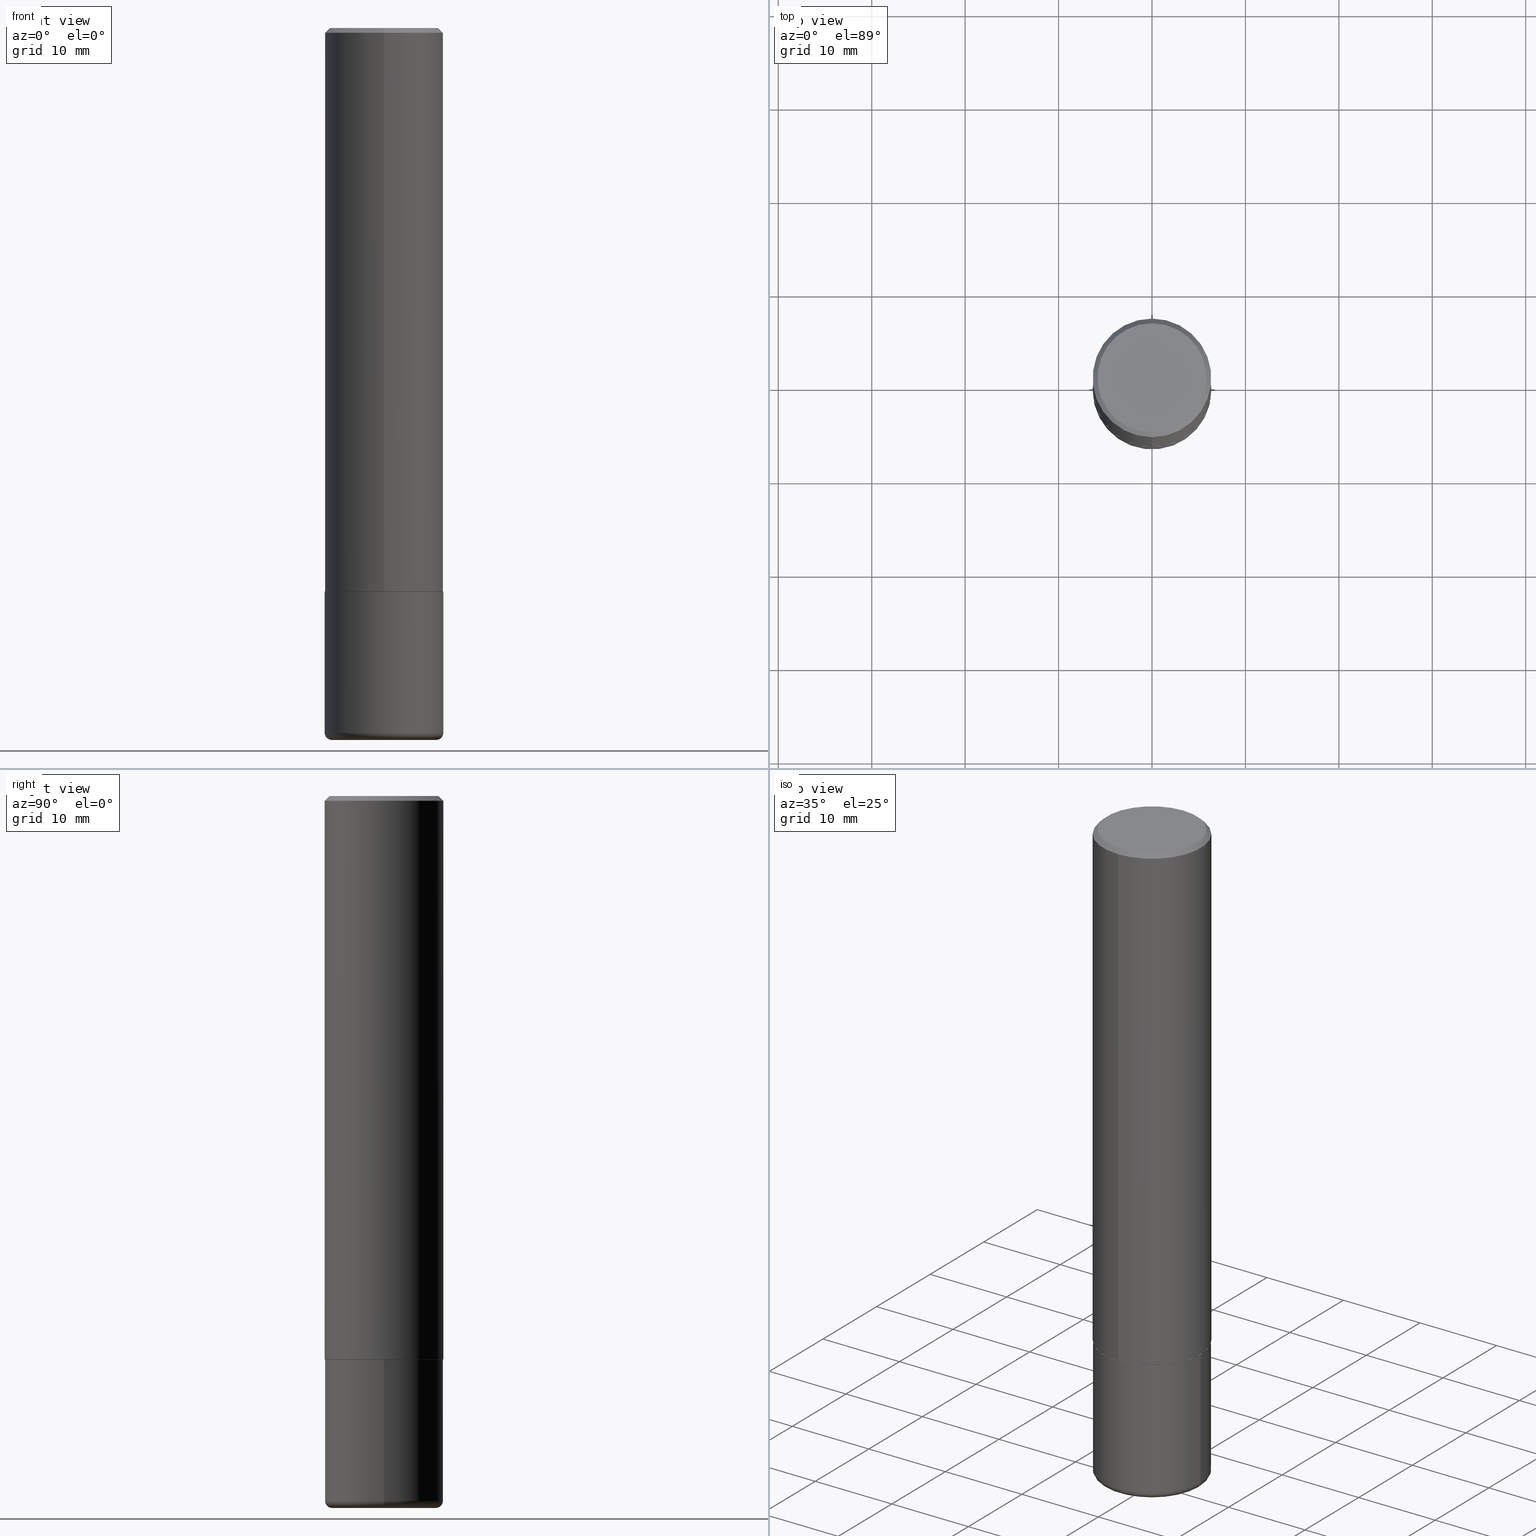
[diagram: canonical four-view strip — front | top / right | iso, engineering-drawing reading convention]
A machine part, canonical four-view strip (front | top / right | iso — engineering-drawing reading convention). The complete STEP part file that produces these views, byte-faithful:
ISO-10303-21;
HEADER;
FILE_DESCRIPTION (( 'STEP AP203' ),
    '1' );
FILE_NAME ('38579.STEP',
    '2024-03-03T06:13:17',
    ( '' ),
    ( '' ),
    'SwSTEP 2.0',
    'SolidWorks 2023',
    '' );
FILE_SCHEMA (( 'CONFIG_CONTROL_DESIGN' ));
ENDSEC;

DATA;
#1 = PLANE ( 'NONE',  #42 ) ;
#2 = ADVANCED_FACE ( 'NONE', ( #289 ), #16, .T. ) ;
#3 = CARTESIAN_POINT ( 'NONE',  ( 1.606081415867843039E-15, 0.2300000000000002320, -9.503610995550391843E-16 ) ) ;
#4 = CARTESIAN_POINT ( 'NONE',  ( 4.890248901431403027E-31, -6.983948950949810725E-17, -0.02000000000000009409 ) ) ;
#5 = LOCAL_TIME ( 1, 13, 17.00000000000000000, #193 ) ;
#6 = ORIENTED_EDGE ( 'NONE', *, *, #399, .F. ) ;
#7 = AXIS2_PLACEMENT_3D ( 'NONE', #167, #31, #171 ) ;
#8 = AXIS2_PLACEMENT_3D ( 'NONE', #75, #89, #13 ) ;
#9 = DIRECTION ( 'NONE',  ( -2.445124450715689953E-29, 3.491974475474889339E-15, 1.000000000000000000 ) ) ;
#10 = APPROVAL ( #225, 'UNSPECIFIED' ) ;
#11 = PERSON_AND_ORGANIZATION ( #302, #256 ) ;
#12 = EDGE_CURVE ( 'NONE', #91, #35, #133, .T. ) ;
#13 = DIRECTION ( 'NONE',  ( -6.982962677686265133E-15, -1.000000000000000000, 3.291383124896702687E-15 ) ) ;
#14 = DIRECTION ( 'NONE',  ( -6.982962677686265133E-15, -1.000000000000000000, 3.291383124896702687E-15 ) ) ;
#15 = APPLICATION_PROTOCOL_DEFINITION ( 'international standard', 'config_control_design', 1994, #173 ) ;
#16 = CYLINDRICAL_SURFACE ( 'NONE', #404, 0.2500000000000001110 ) ;
#17 = VECTOR ( 'NONE', #323, 39.37007874015748143 ) ;
#18 = DIRECTION ( 'NONE',  ( -6.982962677686266711E-15, -1.000000000000000000, 3.491974475474889733E-15 ) ) ;
#19 = FACE_OUTER_BOUND ( 'NONE', #32, .T. ) ;
#20 = ORIENTED_EDGE ( 'NONE', *, *, #297, .F. ) ;
#21 = DIRECTION ( 'NONE',  ( -2.445468806185136597E-29, 3.491481338843145583E-15, 1.000000000000000000 ) ) ;
#22 = FACE_OUTER_BOUND ( 'NONE', #204, .T. ) ;
#23 = ADVANCED_FACE ( 'NONE', ( #293 ), #356, .T. ) ;
#24 = CIRCLE ( 'NONE', #134, 0.2499999999999999722 ) ;
#25 = AXIS2_PLACEMENT_3D ( 'NONE', #351, #319, #137 ) ;
#26 = DIRECTION ( 'NONE',  ( -4.851104656540954020E-15, -0.7071067811865485719, -0.7071067811865464625 ) ) ;
#27 = CIRCLE ( 'NONE', #8, 0.2489999999999999991 ) ;
#28 = ORIENTED_EDGE ( 'NONE', *, *, #273, .T. ) ;
#29 = DIRECTION ( 'NONE',  ( -6.982962677686265133E-15, -1.000000000000000000, 3.291383124896702687E-15 ) ) ;
#30 = FACE_OUTER_BOUND ( 'NONE', #275, .T. ) ;
#31 = DIRECTION ( 'NONE',  ( -2.445468806185136597E-29, 3.491481338843145583E-15, 1.000000000000000000 ) ) ;
#32 = EDGE_LOOP ( 'NONE', ( #269, #158, #242, #330 ) ) ;
#33 = CARTESIAN_POINT ( 'NONE',  ( 5.807170570449764479E-29, -8.293439379252862969E-15, -2.375000000000000000 ) ) ;
#34 = FACE_OUTER_BOUND ( 'NONE', #142, .T. ) ;
#35 = VERTEX_POINT ( 'NONE', #415 ) ;
#36 = AXIS2_PLACEMENT_3D ( 'NONE', #65, #131, #261 ) ;
#37 = DIRECTION ( 'NONE',  ( -2.445124450715689953E-29, 3.491974475474889339E-15, 1.000000000000000000 ) ) ;
#38 = ORIENTED_EDGE ( 'NONE', *, *, #257, .T. ) ;
#39 = DIRECTION ( 'NONE',  ( 1.000000000000000000, -6.982962677686266711E-15, 0.000000000000000000 ) ) ;
#40 = ORIENTED_EDGE ( 'NONE', *, *, #407, .F. ) ;
#41 = CARTESIAN_POINT ( 'NONE',  ( 5.807988414689700538E-29, -8.292268179752471696E-15, -2.375000000000000000 ) ) ;
#42 = AXIS2_PLACEMENT_3D ( 'NONE', #143, #394, #241 ) ;
#43 = AXIS2_PLACEMENT_3D ( 'NONE', #78, #212, #184 ) ;
#44 = TOROIDAL_SURFACE ( 'NONE', #288, 0.2200000000000000011, 0.03000000000000024175 ) ;
#45 = CC_DESIGN_PERSON_AND_ORGANIZATION_ASSIGNMENT ( #344, #64, ( #378 ) ) ;
#46 = DIRECTION ( 'NONE',  ( -2.445124450715689953E-29, 3.491974475474889339E-15, 1.000000000000000000 ) ) ;
#47 = APPROVAL_ROLE ( '' ) ;
#48 = CARTESIAN_POINT ( 'NONE',  ( 0.000000000000000000, 0.000000000000000000, 0.000000000000000000 ) ) ;
#49 = ORIENTED_EDGE ( 'NONE', *, *, #296, .T. ) ;
#50 = EDGE_CURVE ( 'NONE', #91, #228, #295, .T. ) ;
#51 = PERSON_AND_ORGANIZATION ( #302, #256 ) ;
#52 = APPROVAL ( #286, 'UNSPECIFIED' ) ;
#53 = AXIS2_PLACEMENT_3D ( 'NONE', #111, #9, #401 ) ;
#54 = ADVANCED_FACE ( 'NONE', ( #30 ), #417, .T. ) ;
#55 = CARTESIAN_POINT ( 'NONE',  ( 0.000000000000000000, 0.000000000000000000, 0.000000000000000000 ) ) ;
#56 = VERTEX_POINT ( 'NONE', #85 ) ;
#57 = EDGE_CURVE ( 'NONE', #35, #126, #250, .T. ) ;
#58 = COORDINATED_UNIVERSAL_TIME_OFFSET ( 5, 0, .BEHIND. ) ;
#59 = DIRECTION ( 'NONE',  ( -1.000000000000000000, 7.105427357600994759E-15, 0.000000000000000000 ) ) ;
#60 = PERSON_AND_ORGANIZATION ( #302, #256 ) ;
#61 = DATE_TIME_ROLE ( 'classification_date' ) ;
#62 = DIRECTION ( 'NONE',  ( 6.982962677686265922E-15, 1.000000000000000000, -3.500180241882337655E-15 ) ) ;
#63 = EDGE_CURVE ( 'NONE', #79, #337, #153, .T. ) ;
#64 = PERSON_AND_ORGANIZATION_ROLE ( 'creator' ) ;
#65 = CARTESIAN_POINT ( 'NONE',  ( 2.133753896500054563E-29, -1.792493854470469860E-14, -3.000000000000000888 ) ) ;
#66 = CARTESIAN_POINT ( 'NONE',  ( -0.2500000000000000000, -7.554627038658056086E-15, -2.375000000000000000 ) ) ;
#67 = ORIENTED_EDGE ( 'NONE', *, *, #50, .F. ) ;
#68 = CC_DESIGN_SECURITY_CLASSIFICATION ( #107, ( #378 ) ) ;
#69 = LINE ( 'NONE', #263, #17 ) ;
#70 = CIRCLE ( 'NONE', #272, 0.2200000000000000011 ) ;
#71 = DIRECTION ( 'NONE',  ( -2.445468806185136877E-29, 3.491481338843145188E-15, 1.000000000000000000 ) ) ;
#72 = EDGE_LOOP ( 'NONE', ( #348, #115, #247, #106 ) ) ;
#73 = ADVANCED_FACE ( 'NONE', ( #103 ), #235, .T. ) ;
#74 = DIRECTION ( 'NONE',  ( -2.445124450715689953E-29, 3.491974475474889339E-15, 1.000000000000000000 ) ) ;
#75 = CARTESIAN_POINT ( 'NONE',  ( 5.807170570449764479E-29, -8.293439379252862969E-15, -2.375000000000000000 ) ) ;
#76 = LINE ( 'NONE', #207, #218 ) ;
#77 = ORIENTED_EDGE ( 'NONE', *, *, #273, .F. ) ;
#78 = CARTESIAN_POINT ( 'NONE',  ( 5.804725445999048016E-29, -8.289947404777387606E-15, -2.374000000000000110 ) ) ;
#79 = VERTEX_POINT ( 'NONE', #388 ) ;
#80 = DIRECTION ( 'NONE',  ( 1.000000000000000000, -6.982962677686270655E-15, 0.000000000000000000 ) ) ;
#81 = ORIENTED_EDGE ( 'NONE', *, *, #57, .F. ) ;
#82 = DIRECTION ( 'NONE',  ( -2.445468806185136877E-29, 3.491481338843145188E-15, 1.000000000000000000 ) ) ;
#83 = PLANE ( 'NONE',  #258 ) ;
#84 = EDGE_CURVE ( 'NONE', #362, #56, #69, .T. ) ;
#85 = CARTESIAN_POINT ( 'NONE',  ( -1.715124499442881905E-15, -0.2500000000000000555, -0.01999999999999921979 ) ) ;
#86 = CARTESIAN_POINT ( 'NONE',  ( 7.263042354369856275E-29, -1.036969957636414298E-14, -2.970000000000000195 ) ) ;
#87 = PERSON_AND_ORGANIZATION ( #302, #256 ) ;
#88 = VECTOR ( 'NONE', #71, 39.37007874015748143 ) ;
#89 = DIRECTION ( 'NONE',  ( -2.445124450715689953E-29, 3.491974475474889339E-15, 1.000000000000000000 ) ) ;
#90 = DIRECTION ( 'NONE',  ( -2.445124450715689953E-29, 3.491974475474889339E-15, 1.000000000000000000 ) ) ;
#91 = VERTEX_POINT ( 'NONE', #410 ) ;
#92 = MANIFOLD_SOLID_BREP ( 'Body-Move/Copy2[2]', #333 ) ;
#93 = CALENDAR_DATE ( 2024, 3, 3 ) ;
#94 = ADVANCED_FACE ( 'NONE', ( #22 ), #266, .T. ) ;
#95 = LOCAL_TIME ( 1, 13, 17.00000000000000000, #58 ) ;
#96 = PERSON_AND_ORGANIZATION ( #302, #256 ) ;
#97 = DATE_AND_TIME ( #136, #5 ) ;
#98 = DIRECTION ( 'NONE',  ( 2.445124450715689953E-29, -3.491974475474889339E-15, -1.000000000000000000 ) ) ;
#99 = ADVANCED_FACE ( 'NONE', ( #206 ), #416, .F. ) ;
#100 = VECTOR ( 'NONE', #26, 39.37007874015748143 ) ;
#101 = DIRECTION ( 'NONE',  ( 1.000000000000000000, -6.982962677686266711E-15, 4.876176775795935793E-29 ) ) ;
#102 = CARTESIAN_POINT ( 'NONE',  ( -1.738757706743822090E-15, -0.2490000000000082980, -2.374999999999999556 ) ) ;
#103 = FACE_OUTER_BOUND ( 'NONE', #317, .T. ) ;
#104 = EDGE_CURVE ( 'NONE', #335, #56, #105, .T. ) ;
#105 = LINE ( 'NONE', #109, #100 ) ;
#106 = ORIENTED_EDGE ( 'NONE', *, *, #244, .F. ) ;
#107 = SECURITY_CLASSIFICATION ( '', '', #165 ) ;
#108 = AXIS2_PLACEMENT_3D ( 'NONE', #180, #147, #307 ) ;
#109 = CARTESIAN_POINT ( 'NONE',  ( -1.715124499442881905E-15, -0.2500000000000000555, -0.01999999999999921979 ) ) ;
#110 = CIRCLE ( 'NONE', #385, 0.2500000000000000000 ) ;
#111 = CARTESIAN_POINT ( 'NONE',  ( 7.198787242831196614E-45, -1.028085965071548040E-30, -2.944139403916273006E-16 ) ) ;
#112 = PRODUCT_DEFINITION ( 'UNKNOWN', '', #378, #392 ) ;
#113 = PRODUCT ( '38579', '38579', '', ( #279 ) ) ;
#114 = DIRECTION ( 'NONE',  ( -2.445468806185136597E-29, 3.491481338843145583E-15, 1.000000000000000000 ) ) ;
#115 = ORIENTED_EDGE ( 'NONE', *, *, #399, .T. ) ;
#116 = DIRECTION ( 'NONE',  ( -4.937700262165053702E-15, -0.7071067811866175168, 0.7071067811864775177 ) ) ;
#117 = AXIS2_PLACEMENT_3D ( 'NONE', #176, #246, #80 ) ;
#118 = CARTESIAN_POINT ( 'NONE',  ( -0.2500000000000000000, 1.776356839400250465E-15, -1.229733772563726445E-29 ) ) ;
#119 = FACE_OUTER_BOUND ( 'NONE', #231, .T. ) ;
#120 = EDGE_CURVE ( 'NONE', #233, #196, #383, .T. ) ;
#121 = CARTESIAN_POINT ( 'NONE',  ( -0.2200000000000000011, -8.752296367410555115E-15, -3.000000000000000888 ) ) ;
#122 = DATE_AND_TIME ( #253, #95 ) ;
#123 = DATE_AND_TIME ( #93, #294 ) ;
#124 = CARTESIAN_POINT ( 'NONE',  ( 1.675911042644704760E-15, 0.2300000000000002320, -1.097568069750852835E-15 ) ) ;
#125 = LENGTH_MEASURE_WITH_UNIT ( LENGTH_MEASURE( 0.02539999999999999897 ), #347 );
#126 = VERTEX_POINT ( 'NONE', #66 ) ;
#127 = CC_DESIGN_APPROVAL ( #276, ( #378 ) ) ;
#128 =( GEOMETRIC_REPRESENTATION_CONTEXT ( 3 ) GLOBAL_UNCERTAINTY_ASSIGNED_CONTEXT ( ( #132 ) ) GLOBAL_UNIT_ASSIGNED_CONTEXT ( ( #255, #222, #402 ) ) REPRESENTATION_CONTEXT ( 'NONE', 'WORKASPACE' ) );
#129 = CC_DESIGN_DATE_AND_TIME_ASSIGNMENT ( #162, #61, ( #107 ) ) ;
#130 = ADVANCED_FACE ( 'NONE', ( #19 ), #201, .T. ) ;
#131 = DIRECTION ( 'NONE',  ( 2.438088387897960049E-29, -3.491481338843145188E-15, -1.000000000000000000 ) ) ;
#132 = UNCERTAINTY_MEASURE_WITH_UNIT (LENGTH_MEASURE( 1.000000000000000082E-05 ), #255, 'distance_accuracy_value', 'NONE');
#133 = CIRCLE ( 'NONE', #148, 0.2500000000000000000 ) ;
#134 = AXIS2_PLACEMENT_3D ( 'NONE', #245, #150, #217 ) ;
#135 = PERSON_AND_ORGANIZATION ( #302, #256 ) ;
#136 = CALENDAR_DATE ( 2024, 3, 3 ) ;
#137 = DIRECTION ( 'NONE',  ( -6.982962677686265922E-15, -1.000000000000000000, 3.491974475474889339E-15 ) ) ;
#138 = ORIENTED_EDGE ( 'NONE', *, *, #179, .T. ) ;
#139 = ORIENTED_EDGE ( 'NONE', *, *, #84, .F. ) ;
#140 = VECTOR ( 'NONE', #354, 39.37007874015748143 ) ;
#141 = DIRECTION ( 'NONE',  ( -2.445468806185136597E-29, 3.491481338843145583E-15, 1.000000000000000000 ) ) ;
#142 = EDGE_LOOP ( 'NONE', ( #343, #151, #28, #226 ) ) ;
#143 = CARTESIAN_POINT ( 'NONE',  ( 5.807988414689700538E-29, -8.292268179752471696E-15, -2.375000000000000000 ) ) ;
#144 = ORIENTED_EDGE ( 'NONE', *, *, #120, .T. ) ;
#145 = CARTESIAN_POINT ( 'NONE',  ( 0.000000000000000000, 0.000000000000000000, 0.000000000000000000 ) ) ;
#146 = CC_DESIGN_APPROVAL ( #10, ( #112 ) ) ;
#147 = DIRECTION ( 'NONE',  ( -6.982962677686266711E-15, -1.000000000000000000, 3.491481338843145583E-15 ) ) ;
#148 = AXIS2_PLACEMENT_3D ( 'NONE', #345, #312, #232 ) ;
#149 = CONICAL_SURFACE ( 'NONE', #202, 0.2499999999999999722, 0.7853981633974463916 ) ;
#150 = DIRECTION ( 'NONE',  ( -2.445124450715689953E-29, 3.491974475474889339E-15, 1.000000000000000000 ) ) ;
#151 = ORIENTED_EDGE ( 'NONE', *, *, #229, .F. ) ;
#152 = DIRECTION ( 'NONE',  ( 1.000000000000000000, 0.000000000000000000, 0.000000000000000000 ) ) ;
#153 = CIRCLE ( 'NONE', #262, 0.2200000000000000011 ) ;
#154 = ADVANCED_FACE ( 'NONE', ( #329 ), #301, .T. ) ;
#155 = DIRECTION ( 'NONE',  ( 0.000000000000000000, 0.000000000000000000, 1.000000000000000000 ) ) ;
#156 = APPLICATION_PROTOCOL_DEFINITION ( 'international standard', 'config_control_design', 1994, #393 ) ;
#157 = PERSON_AND_ORGANIZATION ( #302, #256 ) ;
#158 = ORIENTED_EDGE ( 'NONE', *, *, #371, .T. ) ;
#159 = AXIS2_PLACEMENT_3D ( 'NONE', #227, #210, #59 ) ;
#160 = EDGE_CURVE ( 'NONE', #362, #233, #412, .T. ) ;
#161 = ADVANCED_FACE ( 'NONE', ( #197 ), #291, .T. ) ;
#162 = DATE_AND_TIME ( #357, #236 ) ;
#163 = DIRECTION ( 'NONE',  ( -2.445124450715689953E-29, 3.491974475474889339E-15, 1.000000000000000000 ) ) ;
#164 = ORIENTED_EDGE ( 'NONE', *, *, #160, .T. ) ;
#165 = SECURITY_CLASSIFICATION_LEVEL ( 'unclassified' ) ;
#166 = DIRECTION ( 'NONE',  ( 1.000000000000000000, -6.982962677686270655E-15, 0.000000000000000000 ) ) ;
#167 = CARTESIAN_POINT ( 'NONE',  ( 7.263042354369856275E-29, -1.036969957636414298E-14, -2.970000000000000195 ) ) ;
#168 = ORIENTED_EDGE ( 'NONE', *, *, #179, .F. ) ;
#169 = PRODUCT_RELATED_PRODUCT_CATEGORY ( 'detail', '', ( #113 ) ) ;
#170 = CLOSED_SHELL ( 'NONE', ( #23, #130, #349, #54, #220, #161 ) ) ;
#171 = DIRECTION ( 'NONE',  ( 1.000000000000000000, -6.982962677686262766E-15, 4.883557194083111780E-29 ) ) ;
#172 = DIRECTION ( 'NONE',  ( 1.000000000000000000, -6.982962677686266711E-15, 4.876176775795935793E-29 ) ) ;
#173 = APPLICATION_CONTEXT ( 'configuration controlled 3d designs of mechanical parts and assemblies' ) ;
#174 = EDGE_CURVE ( 'NONE', #233, #362, #309, .T. ) ;
#175 = CARTESIAN_POINT ( 'NONE',  ( 4.890248901431403027E-31, -6.983948950949810725E-17, -0.02000000000000009409 ) ) ;
#176 = CARTESIAN_POINT ( 'NONE',  ( 7.263042354369856275E-29, -1.036969957636414298E-14, -2.970000000000000195 ) ) ;
#177 = ORIENTED_EDGE ( 'NONE', *, *, #296, .F. ) ;
#178 = EDGE_LOOP ( 'NONE', ( #268, #38 ) ) ;
#179 = EDGE_CURVE ( 'NONE', #56, #196, #281, .T. ) ;
#180 = CARTESIAN_POINT ( 'NONE',  ( 0.2200000000000000011, -1.190595136545512292E-14, -2.970000000000000195 ) ) ;
#181 = ORIENTED_EDGE ( 'NONE', *, *, #174, .T. ) ;
#182 = CARTESIAN_POINT ( 'NONE',  ( 7.336406418555412032E-29, -1.047444401652943951E-14, -3.000000000000000888 ) ) ;
#183 = EDGE_CURVE ( 'NONE', #79, #91, #287, .T. ) ;
#184 = DIRECTION ( 'NONE',  ( -6.982962677686265922E-15, -1.000000000000000000, 3.278217592397112312E-15 ) ) ;
#185 = AXIS2_PLACEMENT_3D ( 'NONE', #4, #37, #341 ) ;
#186 = APPROVAL_PERSON_ORGANIZATION ( #96, #10, #249 ) ;
#187 = DIRECTION ( 'NONE',  ( -2.445468806185136597E-29, 3.491481338843145583E-15, 1.000000000000000000 ) ) ;
#188 = COORDINATED_UNIVERSAL_TIME_OFFSET ( 5, 0, .BEHIND. ) ;
#189 = AXIS2_PLACEMENT_3D ( 'NONE', #237, #298, #29 ) ;
#190 = APPROVAL_DATE_TIME ( #122, #10 ) ;
#191 = ADVANCED_FACE ( 'NONE', ( #418 ), #336, .T. ) ;
#192 = AXIS2_PLACEMENT_3D ( 'NONE', #48, #318, #101 ) ;
#193 = COORDINATED_UNIVERSAL_TIME_OFFSET ( 5, 0, .BEHIND. ) ;
#194 = COORDINATED_UNIVERSAL_TIME_OFFSET ( 5, 0, .BEHIND. ) ;
#195 = DIRECTION ( 'NONE',  ( 1.000000000000000000, -6.982962677686270655E-15, 0.000000000000000000 ) ) ;
#196 = VERTEX_POINT ( 'NONE', #398 ) ;
#197 = FACE_OUTER_BOUND ( 'NONE', #209, .T. ) ;
#198 = ORIENTED_EDGE ( 'NONE', *, *, #244, .T. ) ;
#199 = ORIENTED_EDGE ( 'NONE', *, *, #63, .F. ) ;
#200 = APPROVAL_PERSON_ORGANIZATION ( #87, #276, #47 ) ;
#201 = TOROIDAL_SURFACE ( 'NONE', #7, 0.2200000000000000011, 0.03000000000000024175 ) ;
#202 = AXIS2_PLACEMENT_3D ( 'NONE', #175, #390, #267 ) ;
#203 = ORIENTED_EDGE ( 'NONE', *, *, #50, .T. ) ;
#204 = EDGE_LOOP ( 'NONE', ( #350, #265, #211, #177 ) ) ;
#205 = CC_DESIGN_PERSON_AND_ORGANIZATION_ASSIGNMENT ( #157, #382, ( #107 ) ) ;
#206 = FACE_OUTER_BOUND ( 'NONE', #352, .T. ) ;
#207 = CARTESIAN_POINT ( 'NONE',  ( -1.738757706743822090E-15, -0.2490000000000082980, -2.374999999999999556 ) ) ;
#208 = DIRECTION ( 'NONE',  ( 1.000000000000000000, -6.982962677686262766E-15, 4.883557194083111780E-29 ) ) ;
#209 = EDGE_LOOP ( 'NONE', ( #199, #6 ) ) ;
#210 = DIRECTION ( 'NONE',  ( 7.105427357601001859E-15, 1.000000000000000000, -3.491481338843145583E-15 ) ) ;
#211 = ORIENTED_EDGE ( 'NONE', *, *, #160, .F. ) ;
#212 = DIRECTION ( 'NONE',  ( -2.445124450715689953E-29, 3.491974475474889339E-15, 1.000000000000000000 ) ) ;
#213 = ORIENTED_EDGE ( 'NONE', *, *, #12, .T. ) ;
#214 = FACE_OUTER_BOUND ( 'NONE', #72, .T. ) ;
#215 = EDGE_LOOP ( 'NONE', ( #213, #308, #321, #67 ) ) ;
#216 = CIRCLE ( 'NONE', #53, 0.2300000000000002320 ) ;
#217 = DIRECTION ( 'NONE',  ( -6.982962677686265922E-15, -1.000000000000000000, 3.500180241882337655E-15 ) ) ;
#218 = VECTOR ( 'NONE', #116, 39.37007874015748143 ) ;
#219 = APPROVAL_DATE_TIME ( #123, #276 ) ;
#220 = ADVANCED_FACE ( 'NONE', ( #214 ), #44, .T. ) ;
#221 = DIRECTION ( 'NONE',  ( 5.024295867788576727E-15, 0.7071067811866224018, 0.7071067811864726327 ) ) ;
#222 =( NAMED_UNIT ( * ) PLANE_ANGLE_UNIT ( ) SI_UNIT ( $, .RADIAN. ) );
#223 = CC_DESIGN_PERSON_AND_ORGANIZATION_ASSIGNMENT ( #135, #327, ( #378 ) ) ;
#224 = AXIS2_PLACEMENT_3D ( 'NONE', #41, #338, #39 ) ;
#225 = APPROVAL_STATUS ( 'not_yet_approved' ) ;
#226 = ORIENTED_EDGE ( 'NONE', *, *, #297, .T. ) ;
#227 = CARTESIAN_POINT ( 'NONE',  ( -0.2200000000000000011, -8.806505557691921187E-15, -2.970000000000000195 ) ) ;
#228 = VERTEX_POINT ( 'NONE', #334 ) ;
#229 = EDGE_CURVE ( 'NONE', #355, #335, #216, .T. ) ;
#230 = CARTESIAN_POINT ( 'NONE',  ( 1.776356839400251254E-15, 0.2500000000000001110, -8.729936188687228278E-16 ) ) ;
#231 = EDGE_LOOP ( 'NONE', ( #377, #304 ) ) ;
#232 = DIRECTION ( 'NONE',  ( 1.000000000000000000, -6.982962677686270655E-15, 0.000000000000000000 ) ) ;
#233 = VERTEX_POINT ( 'NONE', #248 ) ;
#234 = CIRCLE ( 'NONE', #224, 0.2500000000000000000 ) ;
#235 = CONICAL_SURFACE ( 'NONE', #368, 0.2489999999999999991, 0.7853981633975507526 ) ;
#236 = LOCAL_TIME ( 1, 13, 17.00000000000000000, #194 ) ;
#237 = CARTESIAN_POINT ( 'NONE',  ( 5.807170570449764479E-29, -8.293439379252862969E-15, -2.375000000000000000 ) ) ;
#238 = MANIFOLD_SOLID_BREP ( 'Body-Move/Copy2[1]', #170 ) ;
#239 = DIRECTION ( 'NONE',  ( -6.982962677686266711E-15, -1.000000000000000000, 3.491974475474889733E-15 ) ) ;
#240 = ORIENTED_EDGE ( 'NONE', *, *, #257, .F. ) ;
#241 = DIRECTION ( 'NONE',  ( -1.000000000000000000, 6.982962677686265922E-15, -4.876176775795935793E-29 ) ) ;
#242 = ORIENTED_EDGE ( 'NONE', *, *, #12, .F. ) ;
#243 = AXIS2_PLACEMENT_3D ( 'NONE', #292, #163, #413 ) ;
#244 = EDGE_CURVE ( 'NONE', #35, #91, #285, .T. ) ;
#245 = CARTESIAN_POINT ( 'NONE',  ( 4.890248901431403027E-31, -6.983948950949810725E-17, -0.02000000000000009409 ) ) ;
#246 = DIRECTION ( 'NONE',  ( -2.445468806185136597E-29, 3.491481338843145583E-15, 1.000000000000000000 ) ) ;
#247 = ORIENTED_EDGE ( 'NONE', *, *, #183, .T. ) ;
#248 = CARTESIAN_POINT ( 'NONE',  ( 1.776356839400280836E-15, 0.2499999999999919786, -2.374000000000000998 ) ) ;
#249 = APPROVAL_ROLE ( '' ) ;
#250 = LINE ( 'NONE', #118, #379 ) ;
#251 = ADVANCED_FACE ( 'NONE', ( #34 ), #149, .T. ) ;
#252 = CARTESIAN_POINT ( 'NONE',  ( -1.745740669421510471E-15, -0.2500000000000085487, -2.373999999999999222 ) ) ;
#253 = CALENDAR_DATE ( 2024, 3, 3 ) ;
#254 = EDGE_CURVE ( 'NONE', #335, #355, #387, .T. ) ;
#255 =( CONVERSION_BASED_UNIT ( 'INCH', #125 ) LENGTH_UNIT ( ) NAMED_UNIT ( #311 ) );
#256 = ORGANIZATION ( 'UNSPECIFIED', 'UNSPECIFIED', '' ) ;
#257 = EDGE_CURVE ( 'NONE', #126, #228, #234, .T. ) ;
#258 = AXIS2_PLACEMENT_3D ( 'NONE', #3, #271, #331 ) ;
#259 = CARTESIAN_POINT ( 'NONE',  ( 0.000000000000000000, 0.000000000000000000, 0.000000000000000000 ) ) ;
#260 = CARTESIAN_POINT ( 'NONE',  ( 4.890248901431403027E-31, -6.983948950949810725E-17, -0.02000000000000009409 ) ) ;
#261 = DIRECTION ( 'NONE',  ( -1.000000000000000000, 6.982962677686265922E-15, -4.876176775795935793E-29 ) ) ;
#262 = AXIS2_PLACEMENT_3D ( 'NONE', #182, #187, #195 ) ;
#263 = CARTESIAN_POINT ( 'NONE',  ( -1.745740669421567467E-15, -0.2500000000000001110, 8.729936188687228278E-16 ) ) ;
#264 = CARTESIAN_POINT ( 'NONE',  ( 5.807170570449764479E-29, -8.293439379252862969E-15, -2.375000000000000000 ) ) ;
#265 = ORIENTED_EDGE ( 'NONE', *, *, #353, .T. ) ;
#266 = CONICAL_SURFACE ( 'NONE', #189, 0.2489999999999999991, 0.7853981633975507526 ) ;
#267 = DIRECTION ( 'NONE',  ( 6.982962677686265922E-15, 1.000000000000000000, -3.500180241882337655E-15 ) ) ;
#268 = ORIENTED_EDGE ( 'NONE', *, *, #280, .T. ) ;
#269 = ORIENTED_EDGE ( 'NONE', *, *, #63, .T. ) ;
#270 = DIRECTION ( 'NONE',  ( -2.445124450715689953E-29, 3.491974475474889339E-15, 1.000000000000000000 ) ) ;
#271 = DIRECTION ( 'NONE',  ( 2.445124450715689673E-29, -3.491974475474889339E-15, -1.000000000000000000 ) ) ;
#272 = AXIS2_PLACEMENT_3D ( 'NONE', #320, #21, #166 ) ;
#273 = EDGE_CURVE ( 'NONE', #355, #196, #364, .T. ) ;
#274 = CARTESIAN_POINT ( 'NONE',  ( 7.198787242831196614E-45, -1.028085965071548040E-30, -2.944139403916273006E-16 ) ) ;
#275 = EDGE_LOOP ( 'NONE', ( #81, #198, #203, #240 ) ) ;
#276 = APPROVAL ( #403, 'UNSPECIFIED' ) ;
#277 = DIRECTION ( 'NONE',  ( 1.000000000000000000, -6.982962677686266711E-15, 0.000000000000000000 ) ) ;
#278 = COORDINATED_UNIVERSAL_TIME_OFFSET ( 5, 0, .BEHIND. ) ;
#279 = MECHANICAL_CONTEXT ( 'NONE', #393, 'mechanical' ) ;
#280 = EDGE_CURVE ( 'NONE', #228, #126, #110, .T. ) ;
#281 = CIRCLE ( 'NONE', #185, 0.2499999999999999722 ) ;
#282 = CALENDAR_DATE ( 2024, 3, 3 ) ;
#283 = ADVANCED_FACE ( 'NONE', ( #119 ), #83, .F. ) ;
#284 = PERSON_AND_ORGANIZATION_ROLE ( 'design_owner' ) ;
#285 = CIRCLE ( 'NONE', #117, 0.2500000000000000000 ) ;
#286 = APPROVAL_STATUS ( 'not_yet_approved' ) ;
#287 = CIRCLE ( 'NONE', #108, 0.03000000000000025910 ) ;
#288 = AXIS2_PLACEMENT_3D ( 'NONE', #86, #141, #208 ) ;
#289 = FACE_OUTER_BOUND ( 'NONE', #332, .T. ) ;
#290 = CARTESIAN_POINT ( 'NONE',  ( 1.772804125721508731E-15, 0.2489999999999917002, -2.375000000000000888 ) ) ;
#291 = PLANE ( 'NONE',  #36 ) ;
#292 = CARTESIAN_POINT ( 'NONE',  ( 5.804725445999048016E-29, -8.289947404777387606E-15, -2.374000000000000110 ) ) ;
#293 = FACE_OUTER_BOUND ( 'NONE', #215, .T. ) ;
#294 = LOCAL_TIME ( 1, 13, 17.00000000000000000, #188 ) ;
#295 = LINE ( 'NONE', #359, #88 ) ;
#296 = EDGE_CURVE ( 'NONE', #395, #362, #76, .T. ) ;
#297 = EDGE_CURVE ( 'NONE', #196, #56, #24, .T. ) ;
#298 = DIRECTION ( 'NONE',  ( -2.445124450715689953E-29, 3.491974475474889339E-15, 1.000000000000000000 ) ) ;
#299 = DIRECTION ( 'NONE',  ( -6.982962677686266711E-15, -1.000000000000000000, 3.491974475474889733E-15 ) ) ;
#300 = EDGE_LOOP ( 'NONE', ( #164, #144, #168, #139 ) ) ;
#301 = CONICAL_SURFACE ( 'NONE', #360, 0.2499999999999999722, 0.7853981633974463916 ) ;
#302 = PERSON ( 'UNSPECIFIED', 'UNSPECIFIED', 'UNSPECIFIED', ('UNSPECIFIED'), ('UNSPECIFIED'), ('UNSPECIFIED') ) ;
#303 = CARTESIAN_POINT ( 'NONE',  ( 5.807988414689700538E-29, -8.292268179752471696E-15, -2.375000000000000000 ) ) ;
#304 = ORIENTED_EDGE ( 'NONE', *, *, #254, .T. ) ;
#305 = CC_DESIGN_PERSON_AND_ORGANIZATION_ASSIGNMENT ( #11, #375, ( #112 ) ) ;
#306 = ORIENTED_EDGE ( 'NONE', *, *, #407, .T. ) ;
#307 = DIRECTION ( 'NONE',  ( 1.000000000000000000, -6.982962677686273021E-15, 0.000000000000000000 ) ) ;
#308 = ORIENTED_EDGE ( 'NONE', *, *, #57, .T. ) ;
#309 = CIRCLE ( 'NONE', #43, 0.2500000000000002776 ) ;
#310 = AXIS2_PLACEMENT_3D ( 'NONE', #33, #90, #14 ) ;
#311 = DIMENSIONAL_EXPONENTS ( 1.000000000000000000, 0.000000000000000000, 0.000000000000000000, 0.000000000000000000, 0.000000000000000000, 0.000000000000000000, 0.000000000000000000 ) ;
#312 = DIRECTION ( 'NONE',  ( -2.445468806185136597E-29, 3.491481338843145583E-15, 1.000000000000000000 ) ) ;
#313 = CC_DESIGN_APPROVAL ( #52, ( #107 ) ) ;
#314 = CC_DESIGN_PERSON_AND_ORGANIZATION_ASSIGNMENT ( #51, #284, ( #113 ) ) ;
#315 = ORIENTED_EDGE ( 'NONE', *, *, #174, .F. ) ;
#316 = DIRECTION ( 'NONE',  ( -2.445124450715689953E-29, 3.491974475474889339E-15, 1.000000000000000000 ) ) ;
#317 = EDGE_LOOP ( 'NONE', ( #367, #306, #49, #315 ) ) ;
#318 = DIRECTION ( 'NONE',  ( -2.445468806185136597E-29, 3.491481338843145583E-15, 1.000000000000000000 ) ) ;
#319 = DIRECTION ( 'NONE',  ( -2.445124450715689673E-29, 3.491974475474889339E-15, 1.000000000000000000 ) ) ;
#320 = CARTESIAN_POINT ( 'NONE',  ( 7.336406418555412032E-29, -1.047444401652943951E-14, -3.000000000000000888 ) ) ;
#321 = ORIENTED_EDGE ( 'NONE', *, *, #280, .F. ) ;
#322 = VECTOR ( 'NONE', #400, 39.37007874015748143 ) ;
#323 = DIRECTION ( 'NONE',  ( -2.445124450715689673E-29, 3.491974475474889339E-15, 1.000000000000000000 ) ) ;
#324 = DIRECTION ( 'NONE',  ( -2.445468806185136597E-29, 3.491481338843145583E-15, 1.000000000000000000 ) ) ;
#325 = AXIS2_PLACEMENT_3D ( 'NONE', #414, #324, #172 ) ;
#326 = EDGE_LOOP ( 'NONE', ( #381, #391, #138, #77 ) ) ;
#327 = PERSON_AND_ORGANIZATION_ROLE ( 'design_supplier' ) ;
#328 = DIRECTION ( 'NONE',  ( -6.982962677686265133E-15, -1.000000000000000000, 3.291383124896702687E-15 ) ) ;
#329 = FACE_OUTER_BOUND ( 'NONE', #326, .T. ) ;
#330 = ORIENTED_EDGE ( 'NONE', *, *, #183, .F. ) ;
#331 = DIRECTION ( 'NONE',  ( 6.982962677686265922E-15, 1.000000000000000000, -3.491974475474889339E-15 ) ) ;
#332 = EDGE_LOOP ( 'NONE', ( #365, #181, #396, #20 ) ) ;
#333 = CLOSED_SHELL ( 'NONE', ( #94, #191, #154, #251, #2, #73, #99, #283 ) ) ;
#334 = CARTESIAN_POINT ( 'NONE',  ( 0.2500000000000000000, -1.003800884917403837E-14, -2.375000000000000000 ) ) ;
#335 = VERTEX_POINT ( 'NONE', #370 ) ;
#336 = CYLINDRICAL_SURFACE ( 'NONE', #361, 0.2500000000000001110 ) ;
#337 = VERTEX_POINT ( 'NONE', #121 ) ;
#338 = DIRECTION ( 'NONE',  ( -2.445468806185136597E-29, 3.491481338843145583E-15, 1.000000000000000000 ) ) ;
#339 = APPROVAL_PERSON_ORGANIZATION ( #60, #52, #409 ) ;
#340 = VECTOR ( 'NONE', #221, 39.37007874015748143 ) ;
#341 = DIRECTION ( 'NONE',  ( -6.982962677686265922E-15, -1.000000000000000000, 3.500180241882337655E-15 ) ) ;
#342 = DATE_TIME_ROLE ( 'creation_date' ) ;
#343 = ORIENTED_EDGE ( 'NONE', *, *, #104, .F. ) ;
#344 = PERSON_AND_ORGANIZATION ( #302, #256 ) ;
#345 = CARTESIAN_POINT ( 'NONE',  ( 7.263042354369856275E-29, -1.036969957636414298E-14, -2.970000000000000195 ) ) ;
#346 = CIRCLE ( 'NONE', #310, 0.2489999999999999991 ) ;
#347 =( LENGTH_UNIT ( ) NAMED_UNIT ( * ) SI_UNIT ( $, .METRE. ) );
#348 = ORIENTED_EDGE ( 'NONE', *, *, #371, .F. ) ;
#349 = ADVANCED_FACE ( 'NONE', ( #373 ), #1, .F. ) ;
#350 = ORIENTED_EDGE ( 'NONE', *, *, #376, .T. ) ;
#351 = CARTESIAN_POINT ( 'NONE',  ( 5.807170570449764479E-29, -8.293439379252862969E-15, -2.375000000000000000 ) ) ;
#352 = EDGE_LOOP ( 'NONE', ( #411, #40 ) ) ;
#353 = EDGE_CURVE ( 'NONE', #358, #233, #366, .T. ) ;
#354 = DIRECTION ( 'NONE',  ( -2.445124450715689673E-29, 3.491974475474889339E-15, 1.000000000000000000 ) ) ;
#355 = VERTEX_POINT ( 'NONE', #124 ) ;
#356 = CYLINDRICAL_SURFACE ( 'NONE', #325, 0.2500000000000000000 ) ;
#357 = CALENDAR_DATE ( 2024, 3, 3 ) ;
#358 = VERTEX_POINT ( 'NONE', #290 ) ;
#359 = CARTESIAN_POINT ( 'NONE',  ( 0.2500000000000000000, -1.745740669421566678E-15, 1.219044193948983948E-29 ) ) ;
#360 = AXIS2_PLACEMENT_3D ( 'NONE', #260, #98, #62 ) ;
#361 = AXIS2_PLACEMENT_3D ( 'NONE', #145, #46, #299 ) ;
#362 = VERTEX_POINT ( 'NONE', #252 ) ;
#363 = CC_DESIGN_DATE_AND_TIME_ASSIGNMENT ( #374, #342, ( #112 ) ) ;
#364 = LINE ( 'NONE', #372, #322 ) ;
#365 = ORIENTED_EDGE ( 'NONE', *, *, #120, .F. ) ;
#366 = LINE ( 'NONE', #405, #340 ) ;
#367 = ORIENTED_EDGE ( 'NONE', *, *, #353, .F. ) ;
#368 = AXIS2_PLACEMENT_3D ( 'NONE', #264, #74, #328 ) ;
#369 = AXIS2_PLACEMENT_3D ( 'NONE', #55, #155, #152 ) ;
#370 = CARTESIAN_POINT ( 'NONE',  ( -1.646519519465167954E-15, -0.2300000000000002320, 5.087401889675979376E-16 ) ) ;
#371 = EDGE_CURVE ( 'NONE', #337, #35, #389, .T. ) ;
#372 = CARTESIAN_POINT ( 'NONE',  ( 1.745740669421566678E-15, 0.2499999999999998890, -0.02000000000000096839 ) ) ;
#373 = FACE_OUTER_BOUND ( 'NONE', #178, .T. ) ;
#374 = DATE_AND_TIME ( #282, #408 ) ;
#375 = PERSON_AND_ORGANIZATION_ROLE ( 'creator' ) ;
#376 = EDGE_CURVE ( 'NONE', #395, #358, #27, .T. ) ;
#377 = ORIENTED_EDGE ( 'NONE', *, *, #229, .T. ) ;
#378 = PRODUCT_DEFINITION_FORMATION_WITH_SPECIFIED_SOURCE ( 'ANY', '', #113, .NOT_KNOWN. ) ;
#379 = VECTOR ( 'NONE', #82, 39.37007874015748143 ) ;
#380 = SHAPE_DEFINITION_REPRESENTATION ( #397, #384 ) ;
#381 = ORIENTED_EDGE ( 'NONE', *, *, #254, .F. ) ;
#382 = PERSON_AND_ORGANIZATION_ROLE ( 'classification_officer' ) ;
#383 = LINE ( 'NONE', #230, #140 ) ;
#384 = ADVANCED_BREP_SHAPE_REPRESENTATION ( '38579', ( #238, #92, #369 ), #128 ) ;
#385 = AXIS2_PLACEMENT_3D ( 'NONE', #303, #114, #277 ) ;
#386 = APPROVAL_DATE_TIME ( #97, #52 ) ;
#387 = CIRCLE ( 'NONE', #406, 0.2300000000000002320 ) ;
#388 = CARTESIAN_POINT ( 'NONE',  ( 0.2200000000000000011, -1.201069580562041945E-14, -3.000000000000000888 ) ) ;
#389 = CIRCLE ( 'NONE', #159, 0.03000000000000025910 ) ;
#390 = DIRECTION ( 'NONE',  ( 2.445124450715689953E-29, -3.491974475474889339E-15, -1.000000000000000000 ) ) ;
#391 = ORIENTED_EDGE ( 'NONE', *, *, #104, .T. ) ;
#392 = DESIGN_CONTEXT ( 'detailed design', #173, 'design' ) ;
#393 = APPLICATION_CONTEXT ( 'configuration controlled 3d designs of mechanical parts and assemblies' ) ;
#394 = DIRECTION ( 'NONE',  ( 2.438088387897960049E-29, -3.491481338843145188E-15, -1.000000000000000000 ) ) ;
#395 = VERTEX_POINT ( 'NONE', #102 ) ;
#396 = ORIENTED_EDGE ( 'NONE', *, *, #84, .T. ) ;
#397 = PRODUCT_DEFINITION_SHAPE ( 'NONE', 'NONE',  #112 ) ;
#398 = CARTESIAN_POINT ( 'NONE',  ( 1.745740669421566678E-15, 0.2499999999999998890, -0.02000000000000096839 ) ) ;
#399 = EDGE_CURVE ( 'NONE', #337, #79, #70, .T. ) ;
#400 = DIRECTION ( 'NONE',  ( 4.937700262164537787E-15, 0.7071067811865436870, -0.7071067811865513475 ) ) ;
#401 = DIRECTION ( 'NONE',  ( -6.982962677686266711E-15, -1.000000000000000000, 3.491974475474889733E-15 ) ) ;
#402 =( NAMED_UNIT ( * ) SI_UNIT ( $, .STERADIAN. ) SOLID_ANGLE_UNIT ( ) );
#403 = APPROVAL_STATUS ( 'not_yet_approved' ) ;
#404 = AXIS2_PLACEMENT_3D ( 'NONE', #259, #316, #18 ) ;
#405 = CARTESIAN_POINT ( 'NONE',  ( 1.769251412042707241E-15, 0.2489999999999917002, -2.375000000000000888 ) ) ;
#406 = AXIS2_PLACEMENT_3D ( 'NONE', #274, #270, #239 ) ;
#407 = EDGE_CURVE ( 'NONE', #358, #395, #346, .T. ) ;
#408 = LOCAL_TIME ( 1, 13, 17.00000000000000000, #278 ) ;
#409 = APPROVAL_ROLE ( '' ) ;
#410 = CARTESIAN_POINT ( 'NONE',  ( 0.2500000000000001110, -1.211544024578571282E-14, -2.970000000000000195 ) ) ;
#411 = ORIENTED_EDGE ( 'NONE', *, *, #376, .F. ) ;
#412 = CIRCLE ( 'NONE', #243, 0.2500000000000002776 ) ;
#413 = DIRECTION ( 'NONE',  ( -6.982962677686265922E-15, -1.000000000000000000, 3.278217592397112312E-15 ) ) ;
#414 = CARTESIAN_POINT ( 'NONE',  ( 0.000000000000000000, 0.000000000000000000, 0.000000000000000000 ) ) ;
#415 = CARTESIAN_POINT ( 'NONE',  ( -0.2500000000000001110, -8.593342736963890941E-15, -2.970000000000000195 ) ) ;
#416 = PLANE ( 'NONE',  #25 ) ;
#417 = CYLINDRICAL_SURFACE ( 'NONE', #192, 0.2500000000000000000 ) ;
#418 = FACE_OUTER_BOUND ( 'NONE', #300, .T. ) ;
ENDSEC;
END-ISO-10303-21;
